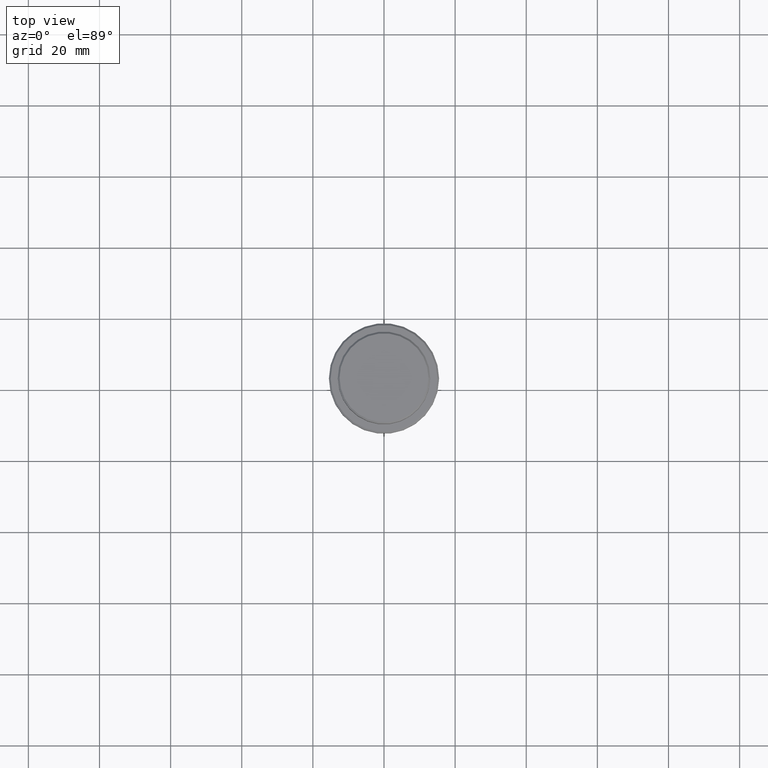
[diagram: clean part render]
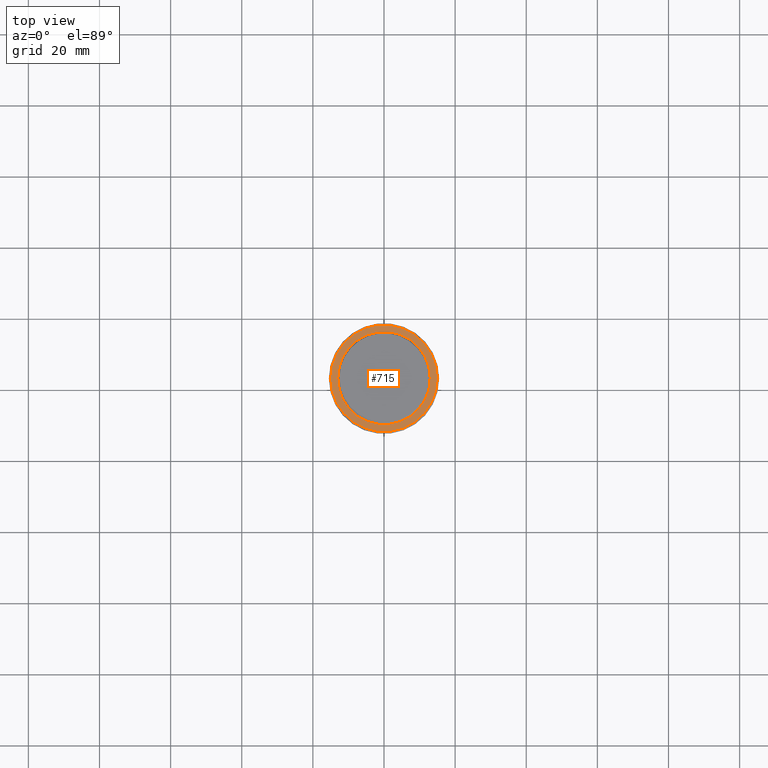
[diagram: same view with one face highlighted and labeled with its STEP entity id]
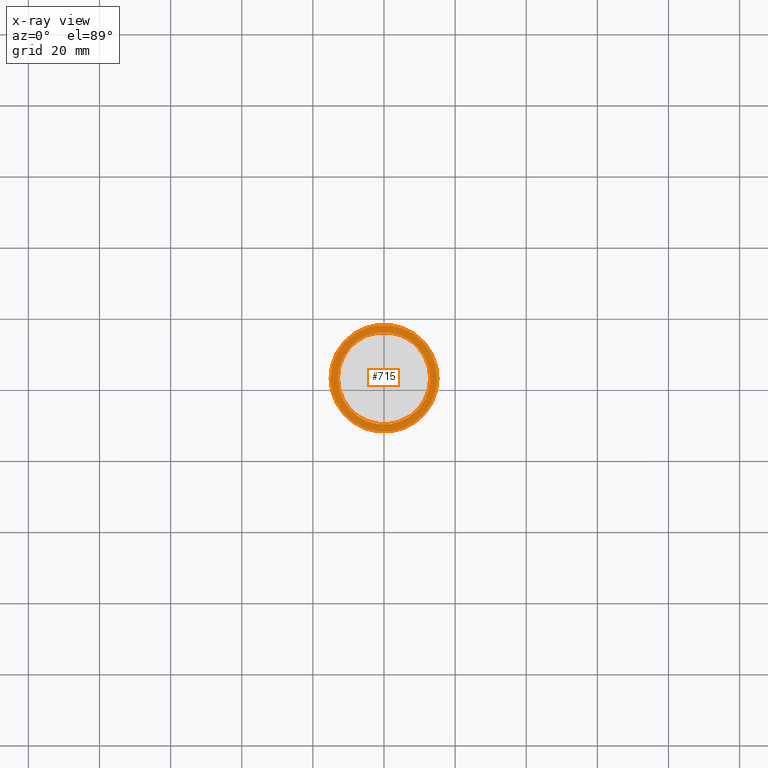
[diagram: x-ray of the same camera — body ghosted, the highlighted face saturated]
A machine part, top view. The second image highlights one B-rep face of the part: STEP entity #715.
The next image is the same camera in x-ray: the body ghosted, the highlighted face saturated — about 0% of this face is hidden behind the body in this view.
In plain terms, the highlighted planar face has unit normal (0, -0, 1).
Its self-contained STEP definition (entity closure, byte-faithful):
#43 = EDGE_LOOP ( 'NONE', ( #908, #63 ) ) ;
#63 = ORIENTED_EDGE ( 'NONE', *, *, #1131, .T. ) ;
#64 = DIRECTION ( 'NONE',  ( 1.000000000000000000, 0.000000000000000000, 0.000000000000000000 ) ) ;
#65 = EDGE_CURVE ( 'NONE', #943, #1071, #523, .T. ) ;
#81 = DIRECTION ( 'NONE',  ( 1.000000000000000000, 0.000000000000000000, 0.000000000000000000 ) ) ;
#104 = CARTESIAN_POINT ( 'NONE',  ( 0.000000000000000000, 0.000000000000000000, -9.000000000000000000 ) ) ;
#185 = FACE_BOUND ( 'NONE', #43, .T. ) ;
#186 = DIRECTION ( 'NONE',  ( -0.000000000000000000, -0.000000000000000000, 1.000000000000000000 ) ) ;
#224 = CARTESIAN_POINT ( 'NONE',  ( -15.00000000000001421, 0.000000000000000000, -9.000000000000000000 ) ) ;
#241 = DIRECTION ( 'NONE',  ( 0.000000000000000000, 0.000000000000000000, -1.000000000000000000 ) ) ;
#259 = VERTEX_POINT ( 'NONE', #1005 ) ;
#293 = VERTEX_POINT ( 'NONE', #682 ) ;
#329 = DIRECTION ( 'NONE',  ( 1.000000000000000000, 0.000000000000000000, 0.000000000000000000 ) ) ;
#437 = CIRCLE ( 'NONE', #1202, 15.00000000000001421 ) ;
#475 = CARTESIAN_POINT ( 'NONE',  ( 0.000000000000000000, 0.000000000000000000, -9.000000000000000000 ) ) ;
#507 = CIRCLE ( 'NONE', #942, 12.99999999999999467 ) ;
#523 = CIRCLE ( 'NONE', #706, 15.00000000000001421 ) ;
#530 = DIRECTION ( 'NONE',  ( 1.000000000000000000, 0.000000000000000000, 0.000000000000000000 ) ) ;
#551 = ORIENTED_EDGE ( 'NONE', *, *, #1382, .T. ) ;
#600 = CARTESIAN_POINT ( 'NONE',  ( 0.000000000000000000, 0.000000000000000000, -9.000000000000000000 ) ) ;
#605 = CARTESIAN_POINT ( 'NONE',  ( 0.000000000000000000, 12.49999999999999289, -9.000000000000000000 ) ) ;
#669 = CARTESIAN_POINT ( 'NONE',  ( 0.000000000000000000, 0.000000000000000000, -9.000000000000000000 ) ) ;
#682 = CARTESIAN_POINT ( 'NONE',  ( 12.99999999999999467, 0.000000000000000000, -9.000000000000000000 ) ) ;
#706 = AXIS2_PLACEMENT_3D ( 'NONE', #104, #886, #1336 ) ;
#715 = ADVANCED_FACE ( 'NONE', ( #1170, #185 ), #1287, .T. ) ;
#844 = AXIS2_PLACEMENT_3D ( 'NONE', #605, #1054, #81 ) ;
#886 = DIRECTION ( 'NONE',  ( -0.000000000000000000, -0.000000000000000000, 1.000000000000000000 ) ) ;
#908 = ORIENTED_EDGE ( 'NONE', *, *, #1332, .T. ) ;
#927 = ORIENTED_EDGE ( 'NONE', *, *, #65, .T. ) ;
#942 = AXIS2_PLACEMENT_3D ( 'NONE', #475, #1381, #64 ) ;
#943 = VERTEX_POINT ( 'NONE', #947 ) ;
#947 = CARTESIAN_POINT ( 'NONE',  ( 15.00000000000001421, 1.867586368699714559E-15, -9.000000000000000000 ) ) ;
#1005 = CARTESIAN_POINT ( 'NONE',  ( -12.99999999999999467, 1.592040838891558504E-15, -9.000000000000000000 ) ) ;
#1015 = AXIS2_PLACEMENT_3D ( 'NONE', #669, #241, #329 ) ;
#1054 = DIRECTION ( 'NONE',  ( 0.000000000000000000, -0.000000000000000000, 1.000000000000000000 ) ) ;
#1071 = VERTEX_POINT ( 'NONE', #224 ) ;
#1131 = EDGE_CURVE ( 'NONE', #259, #293, #1157, .T. ) ;
#1157 = CIRCLE ( 'NONE', #1015, 12.99999999999999467 ) ;
#1170 = FACE_OUTER_BOUND ( 'NONE', #1417, .T. ) ;
#1202 = AXIS2_PLACEMENT_3D ( 'NONE', #600, #186, #530 ) ;
#1287 = PLANE ( 'NONE',  #844 ) ;
#1332 = EDGE_CURVE ( 'NONE', #293, #259, #507, .T. ) ;
#1336 = DIRECTION ( 'NONE',  ( 1.000000000000000000, 0.000000000000000000, 0.000000000000000000 ) ) ;
#1381 = DIRECTION ( 'NONE',  ( 0.000000000000000000, 0.000000000000000000, -1.000000000000000000 ) ) ;
#1382 = EDGE_CURVE ( 'NONE', #1071, #943, #437, .T. ) ;
#1417 = EDGE_LOOP ( 'NONE', ( #551, #927 ) ) ;